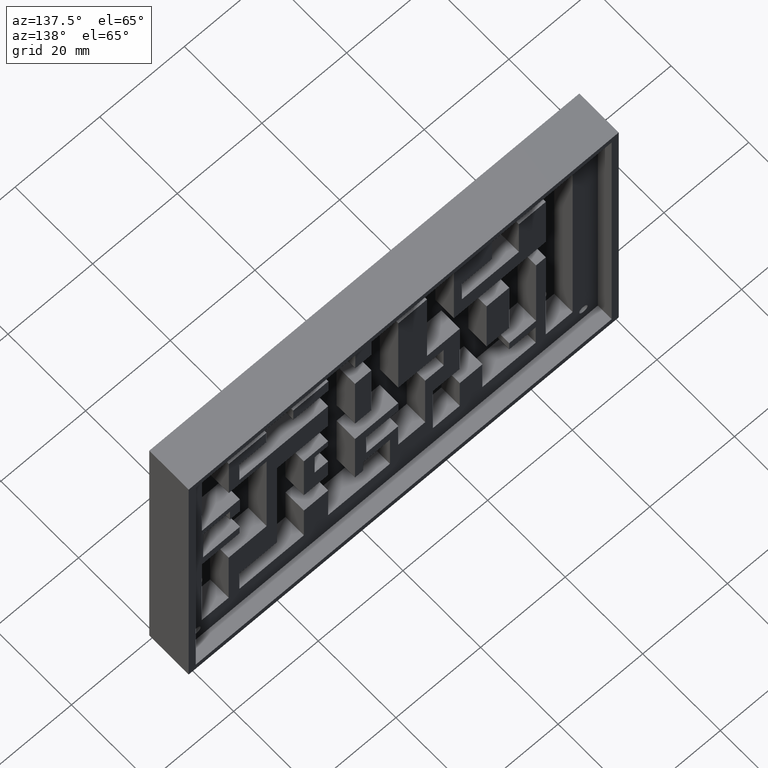
[diagram: clean part render]
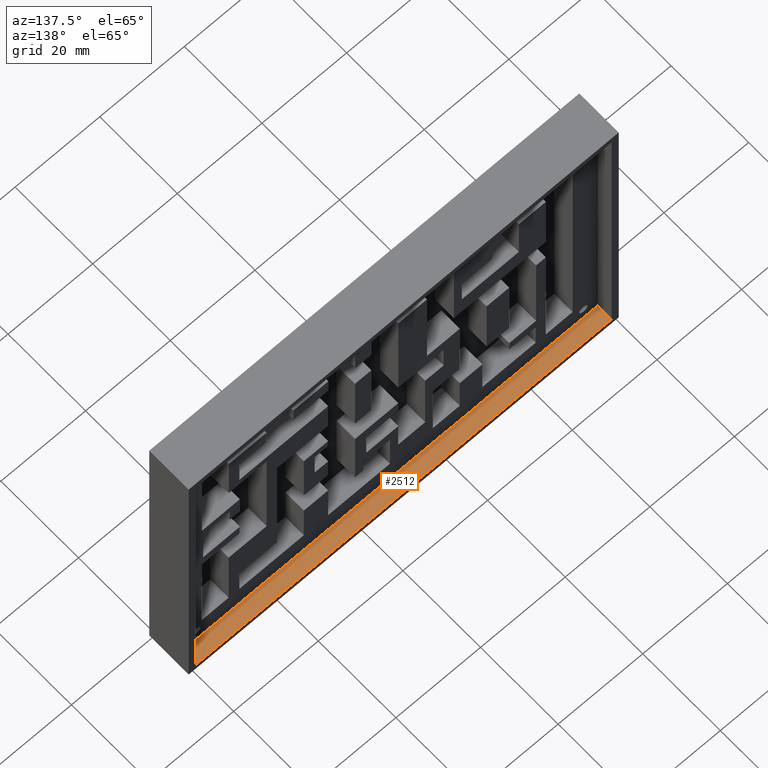
[diagram: same view with one face highlighted and labeled with its STEP entity id]
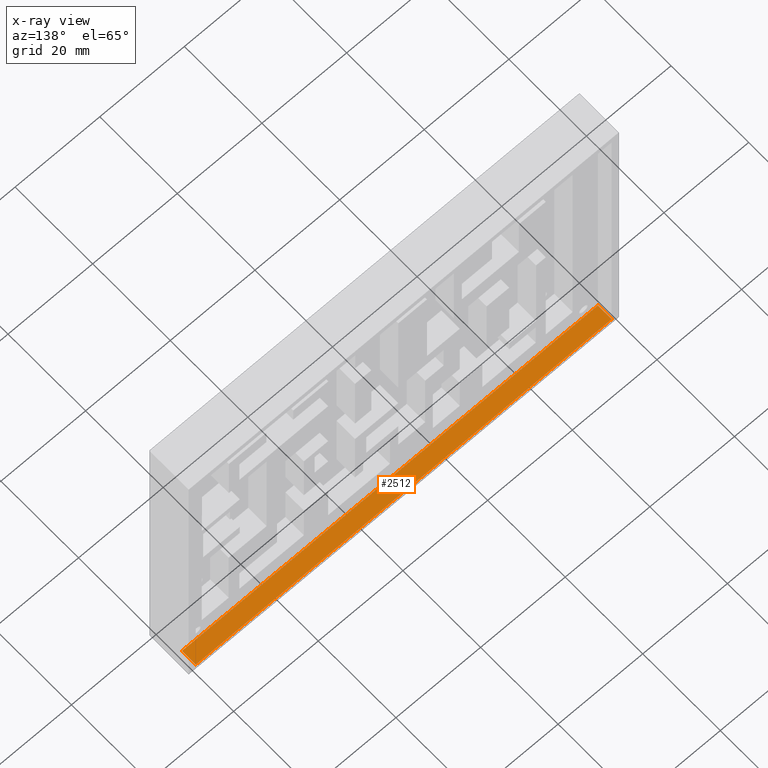
[diagram: x-ray of the same camera — body ghosted, the highlighted face saturated]
A machine part, auxiliary view. The second image highlights one B-rep face of the part: STEP entity #2512.
The next image is the same camera in x-ray: the body ghosted, the highlighted face saturated — about 0% of this face is hidden behind the body in this view.
In plain terms, the highlighted planar face has unit normal (0, 0, -1).
Its self-contained STEP definition (entity closure, byte-faithful):
#48=FACE_OUTER_BOUND('',#184,.T.);
#184=EDGE_LOOP('',(#1659,#1660,#1661,#1662));
#332=LINE('',#3468,#686);
#337=LINE('',#3479,#691);
#339=LINE('',#3482,#693);
#340=LINE('',#3483,#694);
#686=VECTOR('',#2814,0.393700787401575);
#691=VECTOR('',#2823,0.393700787401575);
#693=VECTOR('',#2827,0.393700787401575);
#694=VECTOR('',#2828,0.393700787401575);
#1038=VERTEX_POINT('',#3462);
#1040=VERTEX_POINT('',#3466);
#1043=VERTEX_POINT('',#3476);
#1044=VERTEX_POINT('',#3478);
#1284=EDGE_CURVE('',#1038,#1040,#332,.T.);
#1289=EDGE_CURVE('',#1043,#1044,#337,.T.);
#1291=EDGE_CURVE('',#1038,#1043,#339,.T.);
#1292=EDGE_CURVE('',#1040,#1044,#340,.T.);
#1659=ORIENTED_EDGE('',*,*,#1291,.F.);
#1660=ORIENTED_EDGE('',*,*,#1284,.T.);
#1661=ORIENTED_EDGE('',*,*,#1292,.T.);
#1662=ORIENTED_EDGE('',*,*,#1289,.F.);
#2382=PLANE('',#2662);
#2512=ADVANCED_FACE('',(#48),#2382,.F.);
#2662=AXIS2_PLACEMENT_3D('',#3481,#2825,#2826);
#2814=DIRECTION('',(0.,-1.,0.));
#2823=DIRECTION('',(0.,-1.,0.));
#2825=DIRECTION('center_axis',(0.,0.,-1.));
#2826=DIRECTION('ref_axis',(1.,0.,0.));
#2827=DIRECTION('',(1.,0.,0.));
#2828=DIRECTION('',(1.,0.,0.));
#3462=CARTESIAN_POINT('',(0.0659391311440645,0.4,-2.93406086885593));
#3466=CARTESIAN_POINT('',(0.0659391311440645,0.26,-2.93406086885593));
#3468=CARTESIAN_POINT('',(0.0659391311440645,0.4,-2.93406086885593));
#3476=CARTESIAN_POINT('',(3.93406086885594,0.4,-2.93406086885593));
#3478=CARTESIAN_POINT('',(3.93406086885594,0.26,-2.93406086885593));
#3479=CARTESIAN_POINT('',(3.93406086885594,0.4,-2.93406086885593));
#3481=CARTESIAN_POINT('Origin',(0.0659391311440645,0.4,-2.93406086885593));
#3482=CARTESIAN_POINT('',(1.03296956557203,0.4,-2.93406086885593));
#3483=CARTESIAN_POINT('',(0.0659391311440645,0.26,-2.93406086885593));